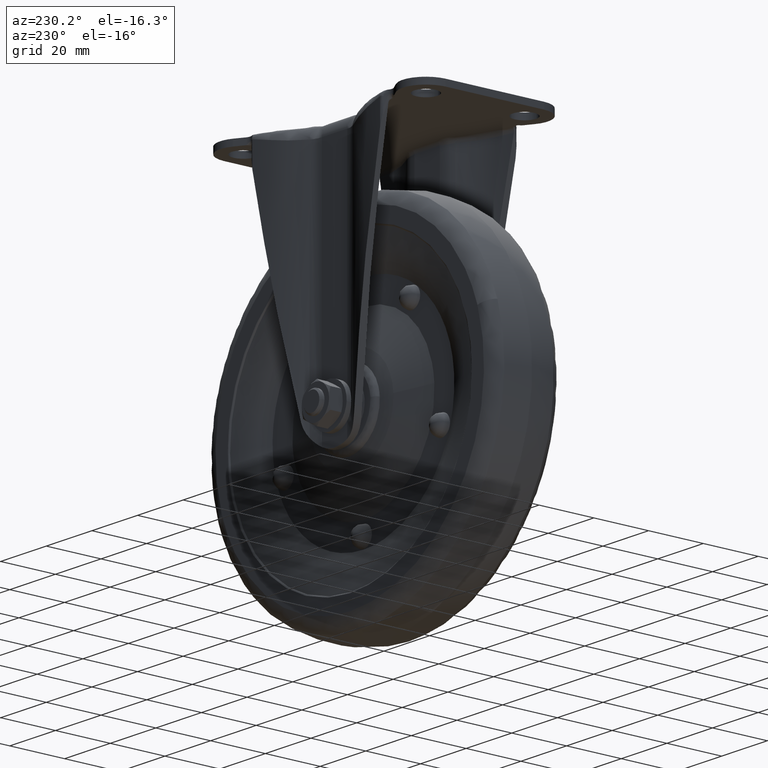
[diagram: clean part render]
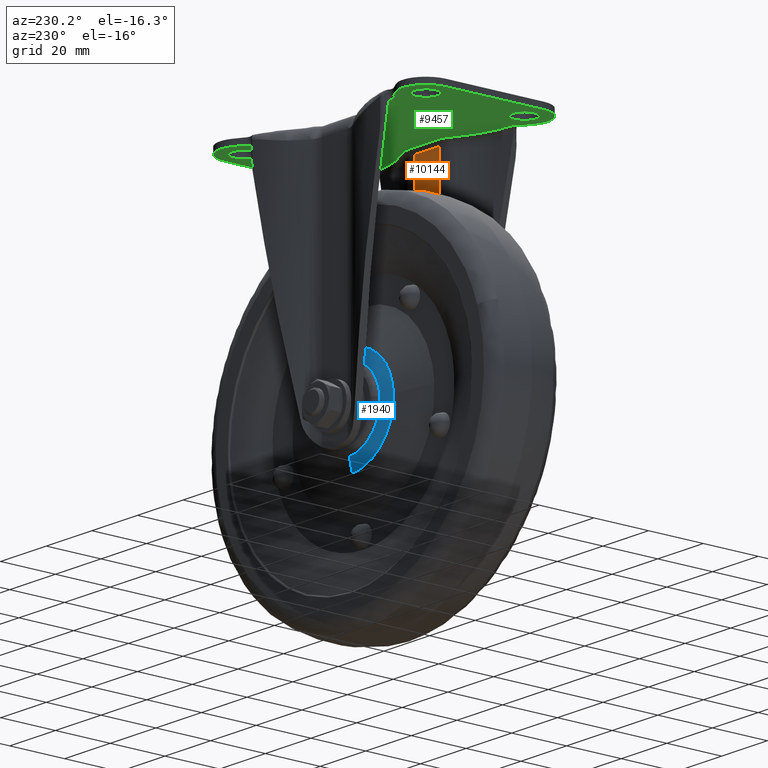
[diagram: same view with three faces highlighted in distinct colors, each labeled with its STEP entity id]
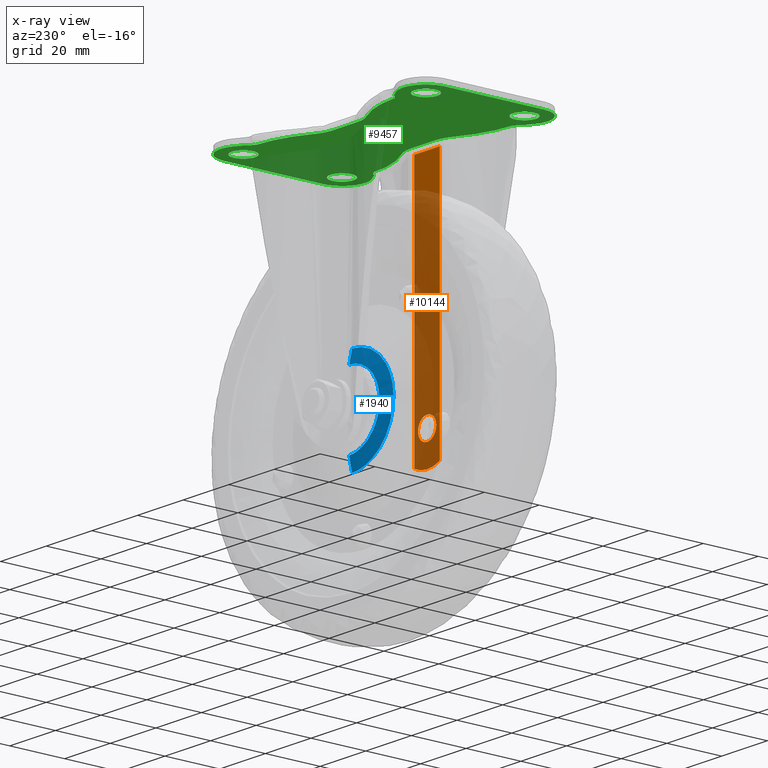
[diagram: x-ray of the same camera — body ghosted, the three highlighted faces saturated]
A machine part, auxiliary view with three faces highlighted in distinct colors.
The next image is the same camera in x-ray (body ghosted, the three faces saturated) — at least one of them is partly hidden behind the body in this view.
Their STEP definitions:

[orange] entity #10144 — the highlighted face is a freeform B-spline surface patch.
#5104=CARTESIAN_POINT('',(0.0,-15.750000000000000,-81.0));
#5105=VERTEX_POINT('',#5104);
#5106=CARTESIAN_POINT('',(-3.999847692249944,-15.750000000000000,-84.965093857234081));
#5107=VERTEX_POINT('',#5106);
#5108=CARTESIAN_POINT('',(0.0,-15.750000000000000,-81.0));
#5109=CARTESIAN_POINT('',(-3.965244841614143,-15.750000000000005,-81.000000000000014));
#5110=CARTESIAN_POINT('',(-3.999847692249944,-15.750000000000000,-84.965093857234081));
#5118=(BOUNDED_CURVE()B_SPLINE_CURVE(2,(#5108,#5109,#5110),.UNSPECIFIED.,.F.,.U.)B_SPLINE_CURVE_WITH_KNOTS((3,3),(0.0,0.248460105630997),.UNSPECIFIED.)CURVE()GEOMETRIC_REPRESENTATION_ITEM()RATIONAL_B_SPLINE_CURVE((1.0,0.708910879660027,0.996414028021684))REPRESENTATION_ITEM(''));
#5119=EDGE_CURVE('',#5105,#5107,#5118,.T.);
#5121=CARTESIAN_POINT('',(3.999847692249944,-15.750000000000000,-85.034906142765919));
#5122=VERTEX_POINT('',#5121);
#5123=CARTESIAN_POINT('',(3.999847692249944,-15.749999999999998,-85.034906142765934));
#5124=CARTESIAN_POINT('',(4.000000000000001,-15.750000000000002,-85.017453403669052));
#5125=CARTESIAN_POINT('',(4.0,-15.750000000000000,-85.0));
#5126=CARTESIAN_POINT('',(4.000000000000000,-15.750000000000009,-81.0));
#5127=CARTESIAN_POINT('',(0.0,-15.750000000000000,-81.0));
#5135=(BOUNDED_CURVE()B_SPLINE_CURVE(2,(#5123,#5124,#5125,#5126,#5127),.UNSPECIFIED.,.F.,.U.)B_SPLINE_CURVE_WITH_KNOTS((3,2,3),(0.748460105630997,0.750000000000000,1.0),.UNSPECIFIED.)CURVE()GEOMETRIC_REPRESENTATION_ITEM()RATIONAL_B_SPLINE_CURVE((0.996414028021683,0.998195901526520,1.0,0.707106781186548,1.0))REPRESENTATION_ITEM(''));
#5136=EDGE_CURVE('',#5122,#5105,#5135,.T.);
#5203=CARTESIAN_POINT('',(0.0,-15.750000000000000,-89.000000000000014));
#5204=VERTEX_POINT('',#5203);
#5205=CARTESIAN_POINT('',(-3.999847692249945,-15.749999999999996,-84.965093857234066));
#5206=CARTESIAN_POINT('',(-4.000000000000000,-15.750000000000000,-84.982546596330963));
#5207=CARTESIAN_POINT('',(-4.0,-15.750000000000000,-85.0));
#5208=CARTESIAN_POINT('',(-4.000000000000000,-15.750000000000009,-89.000000000000014));
#5209=CARTESIAN_POINT('',(0.0,-15.750000000000000,-89.000000000000014));
#5217=(BOUNDED_CURVE()B_SPLINE_CURVE(2,(#5205,#5206,#5207,#5208,#5209),.UNSPECIFIED.,.F.,.U.)B_SPLINE_CURVE_WITH_KNOTS((3,2,3),(0.248460105630997,0.250000000000000,0.500000000000000),.UNSPECIFIED.)CURVE()GEOMETRIC_REPRESENTATION_ITEM()RATIONAL_B_SPLINE_CURVE((0.996414028021685,0.998195901526521,1.0,0.707106781186548,1.0))REPRESENTATION_ITEM(''));
#5218=EDGE_CURVE('',#5107,#5204,#5217,.T.);
#5252=CARTESIAN_POINT('',(0.0,-15.750000000000000,-89.000000000000014));
#5253=CARTESIAN_POINT('',(3.965244841614141,-15.750000000000004,-89.000000000000014));
#5254=CARTESIAN_POINT('',(3.999847692249944,-15.750000000000004,-85.034906142765919));
#5262=(BOUNDED_CURVE()B_SPLINE_CURVE(2,(#5252,#5253,#5254),.UNSPECIFIED.,.F.,.U.)B_SPLINE_CURVE_WITH_KNOTS((3,3),(0.500000000000000,0.748460105630997),.UNSPECIFIED.)CURVE()GEOMETRIC_REPRESENTATION_ITEM()RATIONAL_B_SPLINE_CURVE((1.0,0.708910879660027,0.996414028021684))REPRESENTATION_ITEM(''));
#5263=EDGE_CURVE('',#5204,#5122,#5262,.T.);
#9997=CARTESIAN_POINT('',(5.520442000000000,-15.750000000000000,-95.654796305073091));
#9998=VERTEX_POINT('',#9997);
#9999=CARTESIAN_POINT('',(5.520442000000000,-15.750000000000000,-3.800000000000000));
#10000=VERTEX_POINT('',#9999);
#10001=CARTESIAN_POINT('',(5.520442000000000,-15.750000000000000,-95.654796305073091));
#10002=CARTESIAN_POINT('',(5.520442000000000,-15.750000000000000,-3.800000000000000));
#10003=QUASI_UNIFORM_CURVE('',1,(#10001,#10002),.UNSPECIFIED.,.F.,.U.);
#10004=EDGE_CURVE('',#9998,#10000,#10003,.T.);
#10063=CARTESIAN_POINT('',(-5.520441999999920,-15.750000000000000,-3.800000000000000));
#10064=VERTEX_POINT('',#10063);
#10078=CARTESIAN_POINT('',(-5.520441999999920,-15.750000000000000,-95.654796305073091));
#10079=VERTEX_POINT('',#10078);
#10080=CARTESIAN_POINT('',(-5.520441999999920,-15.750000000000000,-95.654796305073091));
#10081=CARTESIAN_POINT('',(-5.520441999999920,-15.750000000000000,-3.800000000000000));
#10082=QUASI_UNIFORM_CURVE('',1,(#10080,#10081),.UNSPECIFIED.,.F.,.U.);
#10083=EDGE_CURVE('',#10079,#10064,#10082,.T.);
#10111=CARTESIAN_POINT('',(-6.071934134400541,-15.750000000000000,-101.655338054364290));
#10112=CARTESIAN_POINT('',(-6.071934134400541,-15.750000000000000,0.855342235211692));
#10113=CARTESIAN_POINT('',(6.071934430540207,-15.750000000000000,-101.655338054364290));
#10114=CARTESIAN_POINT('',(6.071934430540207,-15.750000000000000,0.855342235211692));
#10115=B_SPLINE_SURFACE_WITH_KNOTS('',1,1,((#10111,#10113),(#10112,#10114)),.UNSPECIFIED.,.F.,.F.,.U.,(2,2),(2,2),(0.0,102.510680289576000),(0.0,12.143868564940750),.UNSPECIFIED.);
#10116=ORIENTED_EDGE('',*,*,#10083,.T.);
#10117=CARTESIAN_POINT('',(-5.520441999999920,-15.750000000000000,-3.800000000000000));
#10118=CARTESIAN_POINT('',(5.520442000000000,-15.750000000000000,-3.800000000000000));
#10119=QUASI_UNIFORM_CURVE('',1,(#10117,#10118),.UNSPECIFIED.,.F.,.U.);
#10120=EDGE_CURVE('',#10064,#10000,#10119,.T.);
#10121=ORIENTED_EDGE('',*,*,#10120,.T.);
#10122=ORIENTED_EDGE('',*,*,#10004,.F.);
#10123=CARTESIAN_POINT('',(5.520442000000007,-15.750000000000000,-95.654796305073106));
#10124=CARTESIAN_POINT('',(4.185146E-014,-15.749999999999998,-98.515036350460718));
#10125=CARTESIAN_POINT('',(-5.520441999999899,-15.750000000000000,-95.654796305073063));
#10133=(BOUNDED_CURVE()B_SPLINE_CURVE(2,(#10123,#10124,#10125),.UNSPECIFIED.,.F.,.U.)CURVE()GEOMETRIC_REPRESENTATION_ITEM()QUASI_UNIFORM_CURVE()RATIONAL_B_SPLINE_CURVE((1.0,0.887899832175140,1.0))REPRESENTATION_ITEM(''));
#10134=EDGE_CURVE('',#9998,#10079,#10133,.T.);
#10135=ORIENTED_EDGE('',*,*,#10134,.T.);
#10136=EDGE_LOOP('',(#10116,#10121,#10122,#10135));
#10137=FACE_OUTER_BOUND('',#10136,.T.);
#10138=ORIENTED_EDGE('',*,*,#5263,.T.);
#10139=ORIENTED_EDGE('',*,*,#5136,.T.);
#10140=ORIENTED_EDGE('',*,*,#5119,.T.);
#10141=ORIENTED_EDGE('',*,*,#5218,.T.);
#10142=EDGE_LOOP('',(#10138,#10139,#10140,#10141));
#10143=FACE_BOUND('',#10142,.T.);
#10144=ADVANCED_FACE('',(#10137,#10143),#10115,.T.);

[blue] entity #1940 — the highlighted face is a freeform B-spline surface patch.
#1618=CARTESIAN_POINT('',(-10.366413089577771,12.688049192069199,-93.245817298732106));
#1619=VERTEX_POINT('',#1618);
#1625=CARTESIAN_POINT('',(0.0,12.688049899293070,-71.754022663813203));
#1626=VERTEX_POINT('',#1625);
#1627=CARTESIAN_POINT('',(0.0,12.688049899293070,-71.754022663813203));
#1628=CARTESIAN_POINT('',(-13.245983458790050,12.688049728728517,-71.754022717224885));
#1629=CARTESIAN_POINT('',(-13.245983598001409,12.688049375117769,-85.000000164084739));
#1630=CARTESIAN_POINT('',(-13.245983646616208,12.688049251631316,-89.625704223587263));
#1631=CARTESIAN_POINT('',(-10.366413089577767,12.688049192069199,-93.245817298732106));
#1639=(BOUNDED_CURVE()B_SPLINE_CURVE(2,(#1627,#1628,#1629,#1630,#1631),.UNSPECIFIED.,.F.,.U.)B_SPLINE_CURVE_WITH_KNOTS((3,2,3),(0.500000000000000,0.750000000000000,0.857863911108724),.UNSPECIFIED.)CURVE()GEOMETRIC_REPRESENTATION_ITEM()RATIONAL_B_SPLINE_CURVE((1.0,0.707106781186548,1.0,0.873629567526231,0.856305607813435))REPRESENTATION_ITEM(''));
#1640=EDGE_CURVE('',#1626,#1619,#1639,.T.);
#1689=CARTESIAN_POINT('',(0.0,12.688049899304950,-98.245977336065266));
#1690=VERTEX_POINT('',#1689);
#1706=CARTESIAN_POINT('',(-10.366413089577767,12.688049192069199,-93.245817298732106));
#1707=CARTESIAN_POINT('',(-6.389102254739951,12.688049545688139,-98.245977446799131));
#1708=CARTESIAN_POINT('',(0.0,12.688049899304950,-98.245977336065266));
#1716=(BOUNDED_CURVE()B_SPLINE_CURVE(2,(#1706,#1707,#1708),.UNSPECIFIED.,.F.,.U.)B_SPLINE_CURVE_WITH_KNOTS((3,3),(0.857863911108724,1.0),.UNSPECIFIED.)CURVE()GEOMETRIC_REPRESENTATION_ITEM()RATIONAL_B_SPLINE_CURVE((0.856305607813435,0.833477213660316,1.0))REPRESENTATION_ITEM(''));
#1717=EDGE_CURVE('',#1619,#1690,#1716,.T.);
#1847=CARTESIAN_POINT('',(0.514801641386205,11.588509420839397,-66.585775598698447));
#1848=CARTESIAN_POINT('',(0.440911184380070,12.469682799776651,-69.228804188820874));
#1849=CARTESIAN_POINT('',(0.363315508502889,12.711175742875819,-72.004366800326082));
#1850=CARTESIAN_POINT('',(0.258899858630133,11.588509420839401,-66.585775598698433));
#1851=CARTESIAN_POINT('',(0.221739470365845,12.469682799776649,-69.228804188820860));
#1852=CARTESIAN_POINT('',(0.182715683532499,12.711175742875808,-72.004366800326082));
#1853=CARTESIAN_POINT('',(-18.414224401301581,11.588509420839394,-66.585775598698419));
#1854=CARTESIAN_POINT('',(-15.771195811179133,12.469682799776646,-69.228804188820860));
#1855=CARTESIAN_POINT('',(-12.995633199673927,12.711175742875810,-72.004366800326068));
#1856=CARTESIAN_POINT('',(-18.414224401301581,11.588509420839394,-85.0));
#1857=CARTESIAN_POINT('',(-15.771195811179133,12.469682799776649,-85.0));
#1858=CARTESIAN_POINT('',(-12.995633199673929,12.711175742875808,-85.000000000000014));
#1859=CARTESIAN_POINT('',(-18.414224401301581,11.588509420839394,-103.414224401301600));
#1860=CARTESIAN_POINT('',(-15.771195811179135,12.469682799776646,-100.771195811179140));
#1861=CARTESIAN_POINT('',(-12.995633199673930,12.711175742875810,-97.995633199673946));
#1862=CARTESIAN_POINT('',(0.258899858630130,11.588509420839388,-103.414224401301570));
#1863=CARTESIAN_POINT('',(0.221739470365842,12.469682799776651,-100.771195811179150));
#1864=CARTESIAN_POINT('',(0.182715683532497,12.711175742875808,-97.995633199673932));
#1865=CARTESIAN_POINT('',(0.514801641386200,11.588509420839397,-103.414224401301580));
#1866=CARTESIAN_POINT('',(0.440911184380065,12.469682799776653,-100.771195811179140));
#1867=CARTESIAN_POINT('',(0.363315508502886,12.711175742875808,-97.995633199673932));
#1875=(BOUNDED_SURFACE()B_SPLINE_SURFACE(2,2,((#1847,#1850,#1853,#1856,#1859,#1862,#1865),(#1848,#1851,#1854,#1857,#1860,#1863,#1866),(#1849,#1852,#1855,#1858,#1861,#1864,#1867)),.UNSPECIFIED.,.F.,.F.,.U.)B_SPLINE_SURFACE_WITH_KNOTS((3,3),(3,1,2,1,3),(0.0,5.552817366161546),(0.0,0.610193719008058,31.119879669410871,61.629565619813683,62.239759338821727),.UNSPECIFIED.)GEOMETRIC_REPRESENTATION_ITEM()RATIONAL_B_SPLINE_SURFACE(((0.901019487364567,0.895802557541933,0.629739136587594,0.890585627719299,0.629739136587594,0.895802557541933,0.901019487364567),(0.894681835065612,0.889501600439638,0.625309634514992,0.884321365813665,0.625309634514992,0.889501600439638,0.894681835065612),(0.900769780755474,0.895554296741587,0.629564612033336,0.890338812727699,0.629564612033336,0.895554296741587,0.900769780755474)))REPRESENTATION_ITEM('')SURFACE());
#1876=CARTESIAN_POINT('',(0.0,11.666732943407069,-66.824634206523427));
#1877=VERTEX_POINT('',#1876);
#1878=CARTESIAN_POINT('',(0.0,11.666732943407073,-66.824634206523427));
#1879=CARTESIAN_POINT('',(0.0,12.441769458409226,-69.234552112638340));
#1880=CARTESIAN_POINT('',(0.0,12.688049899293071,-71.754022663813203));
#1888=(BOUNDED_CURVE()B_SPLINE_CURVE(2,(#1878,#1879,#1880),.UNSPECIFIED.,.F.,.U.)B_SPLINE_CURVE_WITH_KNOTS((3,3),(0.807759080456344,0.857801439566471),.UNSPECIFIED.)CURVE()GEOMETRIC_REPRESENTATION_ITEM()RATIONAL_B_SPLINE_CURVE((0.890042001759547,0.884853785663195,0.889817599199278))REPRESENTATION_ITEM(''));
#1889=EDGE_CURVE('',#1877,#1626,#1888,.T.);
#1890=ORIENTED_EDGE('',*,*,#1889,.T.);
#1891=ORIENTED_EDGE('',*,*,#1640,.T.);
#1892=ORIENTED_EDGE('',*,*,#1717,.T.);
#1893=CARTESIAN_POINT('',(0.0,11.666734379930780,-103.175361326713900));
#1894=VERTEX_POINT('',#1893);
#1895=CARTESIAN_POINT('',(0.0,11.666734379930780,-103.175361326713930));
#1896=CARTESIAN_POINT('',(0.0,12.441769689293849,-100.765445525528720));
#1897=CARTESIAN_POINT('',(0.0,12.688049899304946,-98.245977336065266));
#1905=(BOUNDED_CURVE()B_SPLINE_CURVE(2,(#1895,#1896,#1897),.UNSPECIFIED.,.F.,.U.)B_SPLINE_CURVE_WITH_KNOTS((3,3),(0.807759127104812,0.857801439567684),.UNSPECIFIED.)CURVE()GEOMETRIC_REPRESENTATION_ITEM()RATIONAL_B_SPLINE_CURVE((0.890041992086857,0.884853790290235,0.889817599199519))REPRESENTATION_ITEM(''));
#1906=EDGE_CURVE('',#1894,#1690,#1905,.T.);
#1907=ORIENTED_EDGE('',*,*,#1906,.F.);
#1908=CARTESIAN_POINT('',(-18.141456629342009,11.666734590494920,-83.890420978409807));
#1909=VERTEX_POINT('',#1908);
#1910=CARTESIAN_POINT('',(-18.141456629342017,11.666734590494913,-83.890420978409807));
#1911=CARTESIAN_POINT('',(-18.175357168187357,11.666734598420932,-84.444691486637893));
#1912=CARTESIAN_POINT('',(-18.175357163415558,11.666734605506850,-84.999997748080006));
#1913=CARTESIAN_POINT('',(-18.175357007233018,11.666734837431170,-103.175361317727820));
#1914=CARTESIAN_POINT('',(0.0,11.666734379930780,-103.175361326713900));
#1922=(BOUNDED_CURVE()B_SPLINE_CURVE(2,(#1910,#1911,#1912,#1913,#1914),.UNSPECIFIED.,.F.,.U.)B_SPLINE_CURVE_WITH_KNOTS((3,2,3),(0.739332987273075,0.750000000000000,1.0),.UNSPECIFIED.)CURVE()GEOMETRIC_REPRESENTATION_ITEM()RATIONAL_B_SPLINE_CURVE((0.976072095319635,0.987502817229148,1.0,0.707106781186547,1.0))REPRESENTATION_ITEM(''));
#1923=EDGE_CURVE('',#1909,#1894,#1922,.T.);
#1924=ORIENTED_EDGE('',*,*,#1923,.F.);
#1925=CARTESIAN_POINT('',(0.0,11.666732943407069,-66.824634206523427));
#1926=CARTESIAN_POINT('',(-17.097671107821739,11.666733429744262,-66.824634196970891));
#1927=CARTESIAN_POINT('',(-18.141456629342017,11.666734590494913,-83.890420978409807));
#1935=(BOUNDED_CURVE()B_SPLINE_CURVE(2,(#1925,#1926,#1927),.UNSPECIFIED.,.F.,.U.)B_SPLINE_CURVE_WITH_KNOTS((3,3),(0.500000000000000,0.739332987273075),.UNSPECIFIED.)CURVE()GEOMETRIC_REPRESENTATION_ITEM()RATIONAL_B_SPLINE_CURVE((1.0,0.719603963957400,0.976072095319635))REPRESENTATION_ITEM(''));
#1936=EDGE_CURVE('',#1877,#1909,#1935,.T.);
#1937=ORIENTED_EDGE('',*,*,#1936,.F.);
#1938=EDGE_LOOP('',(#1890,#1891,#1892,#1907,#1924,#1937));
#1939=FACE_OUTER_BOUND('',#1938,.T.);
#1940=ADVANCED_FACE('',(#1939),#1875,.T.);

[green] entity #9457 — the highlighted face is a freeform B-spline surface patch.
#5468=CARTESIAN_POINT('',(-40.259456293401172,13.757927106730190,-2.300000000000080));
#5469=VERTEX_POINT('',#5468);
#5470=CARTESIAN_POINT('',(-35.750000000000007,18.0,-2.300000000000080));
#5471=VERTEX_POINT('',#5470);
#5472=CARTESIAN_POINT('',(-40.259456293401172,13.757927106730186,-2.300000000000079));
#5473=CARTESIAN_POINT('',(-40.129849244208550,13.750000000000002,-2.300000000000079));
#5474=CARTESIAN_POINT('',(-40.0,13.750000000000000,-2.300000000000080));
#5475=CARTESIAN_POINT('',(-35.750000000000007,13.750000000000000,-2.300000000000080));
#5476=CARTESIAN_POINT('',(-35.750000000000007,18.0,-2.300000000000080));
#5484=(BOUNDED_CURVE()B_SPLINE_CURVE(2,(#5472,#5473,#5474,#5475,#5476),.UNSPECIFIED.,.F.,.U.)B_SPLINE_CURVE_WITH_KNOTS((3,2,3),(0.239332962226592,0.250000000000000,0.500000000000000),.UNSPECIFIED.)CURVE()GEOMETRIC_REPRESENTATION_ITEM()RATIONAL_B_SPLINE_CURVE((0.976072041640247,0.987502787885367,1.0,0.707106781186548,1.0))REPRESENTATION_ITEM(''));
#5485=EDGE_CURVE('',#5469,#5471,#5484,.T.);
#5526=CARTESIAN_POINT('',(-39.740543706598842,22.242072893269810,-2.300000000000080));
#5527=VERTEX_POINT('',#5526);
#5533=CARTESIAN_POINT('',(-35.750000000000007,18.0,-2.300000000000080));
#5534=CARTESIAN_POINT('',(-35.750000000000000,21.998000783992268,-2.300000000000080));
#5535=CARTESIAN_POINT('',(-39.740543706598835,22.242072893269821,-2.300000000000081));
#5543=(BOUNDED_CURVE()B_SPLINE_CURVE(2,(#5533,#5534,#5535),.UNSPECIFIED.,.F.,.U.)B_SPLINE_CURVE_WITH_KNOTS((3,3),(0.500000000000000,0.739332962226592),.UNSPECIFIED.)CURVE()GEOMETRIC_REPRESENTATION_ITEM()RATIONAL_B_SPLINE_CURVE((1.0,0.719603993301180,0.976072041640248))REPRESENTATION_ITEM(''));
#5544=EDGE_CURVE('',#5471,#5527,#5543,.T.);
#5567=CARTESIAN_POINT('',(-44.250000000000000,18.0,-2.300000000000080));
#5568=VERTEX_POINT('',#5567);
#5569=CARTESIAN_POINT('',(-44.250000000000000,18.0,-2.300000000000080));
#5570=CARTESIAN_POINT('',(-44.249999999999993,14.001999216007743,-2.300000000000079));
#5571=CARTESIAN_POINT('',(-40.259456293401172,13.757927106730188,-2.300000000000080));
#5579=(BOUNDED_CURVE()B_SPLINE_CURVE(2,(#5569,#5570,#5571),.UNSPECIFIED.,.F.,.U.)B_SPLINE_CURVE_WITH_KNOTS((3,3),(0.0,0.239332962226592),.UNSPECIFIED.)CURVE()GEOMETRIC_REPRESENTATION_ITEM()RATIONAL_B_SPLINE_CURVE((1.0,0.719603993301180,0.976072041640247))REPRESENTATION_ITEM(''));
#5580=EDGE_CURVE('',#5568,#5469,#5579,.T.);
#5582=CARTESIAN_POINT('',(-39.740543706598835,22.242072893269821,-2.300000000000081));
#5583=CARTESIAN_POINT('',(-39.870150755791464,22.249999999999996,-2.300000000000080));
#5584=CARTESIAN_POINT('',(-40.0,22.250000000000000,-2.300000000000080));
#5585=CARTESIAN_POINT('',(-44.250000000000000,22.249999999999996,-2.300000000000080));
#5586=CARTESIAN_POINT('',(-44.250000000000000,18.0,-2.300000000000080));
#5594=(BOUNDED_CURVE()B_SPLINE_CURVE(2,(#5582,#5583,#5584,#5585,#5586),.UNSPECIFIED.,.F.,.U.)B_SPLINE_CURVE_WITH_KNOTS((3,2,3),(0.739332962226592,0.750000000000000,1.0),.UNSPECIFIED.)CURVE()GEOMETRIC_REPRESENTATION_ITEM()RATIONAL_B_SPLINE_CURVE((0.976072041640248,0.987502787885368,1.0,0.707106781186548,1.0))REPRESENTATION_ITEM(''));
#5595=EDGE_CURVE('',#5527,#5568,#5594,.T.);
#5650=CARTESIAN_POINT('',(-40.259456293401172,-22.242072893269810,-2.300000000000080));
#5651=VERTEX_POINT('',#5650);
#5652=CARTESIAN_POINT('',(-35.750000000000007,-18.0,-2.300000000000080));
#5653=VERTEX_POINT('',#5652);
#5654=CARTESIAN_POINT('',(-40.259456293401165,-22.242072893269818,-2.300000000000079));
#5655=CARTESIAN_POINT('',(-40.129849244208543,-22.250000000000000,-2.300000000000079));
#5656=CARTESIAN_POINT('',(-40.0,-22.250000000000000,-2.300000000000080));
#5657=CARTESIAN_POINT('',(-35.750000000000007,-22.249999999999996,-2.300000000000080));
#5658=CARTESIAN_POINT('',(-35.750000000000007,-18.0,-2.300000000000080));
#5666=(BOUNDED_CURVE()B_SPLINE_CURVE(2,(#5654,#5655,#5656,#5657,#5658),.UNSPECIFIED.,.F.,.U.)B_SPLINE_CURVE_WITH_KNOTS((3,2,3),(0.239332962226592,0.250000000000000,0.500000000000000),.UNSPECIFIED.)CURVE()GEOMETRIC_REPRESENTATION_ITEM()RATIONAL_B_SPLINE_CURVE((0.976072041640247,0.987502787885367,1.0,0.707106781186548,1.0))REPRESENTATION_ITEM(''));
#5667=EDGE_CURVE('',#5651,#5653,#5666,.T.);
#5708=CARTESIAN_POINT('',(-39.740543706598842,-13.757927106730190,-2.300000000000080));
#5709=VERTEX_POINT('',#5708);
#5715=CARTESIAN_POINT('',(-35.750000000000007,-18.0,-2.300000000000080));
#5716=CARTESIAN_POINT('',(-35.750000000000000,-14.001999216007727,-2.300000000000080));
#5717=CARTESIAN_POINT('',(-39.740543706598835,-13.757927106730184,-2.300000000000081));
#5725=(BOUNDED_CURVE()B_SPLINE_CURVE(2,(#5715,#5716,#5717),.UNSPECIFIED.,.F.,.U.)B_SPLINE_CURVE_WITH_KNOTS((3,3),(0.500000000000000,0.739332962226592),.UNSPECIFIED.)CURVE()GEOMETRIC_REPRESENTATION_ITEM()RATIONAL_B_SPLINE_CURVE((1.0,0.719603993301180,0.976072041640248))REPRESENTATION_ITEM(''));
#5726=EDGE_CURVE('',#5653,#5709,#5725,.T.);
#5749=CARTESIAN_POINT('',(-44.250000000000000,-18.0,-2.300000000000080));
#5750=VERTEX_POINT('',#5749);
#5751=CARTESIAN_POINT('',(-44.250000000000000,-18.0,-2.300000000000080));
#5752=CARTESIAN_POINT('',(-44.249999999999993,-21.998000783992250,-2.300000000000079));
#5753=CARTESIAN_POINT('',(-40.259456293401172,-22.242072893269814,-2.300000000000080));
#5761=(BOUNDED_CURVE()B_SPLINE_CURVE(2,(#5751,#5752,#5753),.UNSPECIFIED.,.F.,.U.)B_SPLINE_CURVE_WITH_KNOTS((3,3),(0.0,0.239332962226592),.UNSPECIFIED.)CURVE()GEOMETRIC_REPRESENTATION_ITEM()RATIONAL_B_SPLINE_CURVE((1.0,0.719603993301180,0.976072041640247))REPRESENTATION_ITEM(''));
#5762=EDGE_CURVE('',#5750,#5651,#5761,.T.);
#5764=CARTESIAN_POINT('',(-39.740543706598835,-13.757927106730184,-2.300000000000081));
#5765=CARTESIAN_POINT('',(-39.870150755791464,-13.749999999999995,-2.300000000000080));
#5766=CARTESIAN_POINT('',(-40.0,-13.750000000000000,-2.300000000000080));
#5767=CARTESIAN_POINT('',(-44.250000000000000,-13.750000000000000,-2.300000000000080));
#5768=CARTESIAN_POINT('',(-44.250000000000000,-18.0,-2.300000000000080));
#5776=(BOUNDED_CURVE()B_SPLINE_CURVE(2,(#5764,#5765,#5766,#5767,#5768),.UNSPECIFIED.,.F.,.U.)B_SPLINE_CURVE_WITH_KNOTS((3,2,3),(0.739332962226592,0.750000000000000,1.0),.UNSPECIFIED.)CURVE()GEOMETRIC_REPRESENTATION_ITEM()RATIONAL_B_SPLINE_CURVE((0.976072041640248,0.987502787885368,1.0,0.707106781186548,1.0))REPRESENTATION_ITEM(''));
#5777=EDGE_CURVE('',#5709,#5750,#5776,.T.);
#5832=CARTESIAN_POINT('',(39.740543706598842,13.757927106730190,-2.300000000000080));
#5833=VERTEX_POINT('',#5832);
#5834=CARTESIAN_POINT('',(44.250000000000000,18.0,-2.300000000000080));
#5835=VERTEX_POINT('',#5834);
#5836=CARTESIAN_POINT('',(39.740543706598842,13.757927106730186,-2.300000000000080));
#5837=CARTESIAN_POINT('',(39.870150755791457,13.749999999999996,-2.300000000000079));
#5838=CARTESIAN_POINT('',(40.0,13.750000000000000,-2.300000000000080));
#5839=CARTESIAN_POINT('',(44.250000000000000,13.750000000000000,-2.300000000000080));
#5840=CARTESIAN_POINT('',(44.250000000000000,18.0,-2.300000000000080));
#5848=(BOUNDED_CURVE()B_SPLINE_CURVE(2,(#5836,#5837,#5838,#5839,#5840),.UNSPECIFIED.,.F.,.U.)B_SPLINE_CURVE_WITH_KNOTS((3,2,3),(0.239332962226592,0.250000000000000,0.500000000000000),.UNSPECIFIED.)CURVE()GEOMETRIC_REPRESENTATION_ITEM()RATIONAL_B_SPLINE_CURVE((0.976072041640248,0.987502787885368,1.0,0.707106781186548,1.0))REPRESENTATION_ITEM(''));
#5849=EDGE_CURVE('',#5833,#5835,#5848,.T.);
#5890=CARTESIAN_POINT('',(40.259456293401172,22.242072893269810,-2.300000000000080));
#5891=VERTEX_POINT('',#5890);
#5897=CARTESIAN_POINT('',(44.250000000000000,18.0,-2.300000000000080));
#5898=CARTESIAN_POINT('',(44.249999999999993,21.998000783992257,-2.300000000000080));
#5899=CARTESIAN_POINT('',(40.259456293401165,22.242072893269814,-2.300000000000080));
#5907=(BOUNDED_CURVE()B_SPLINE_CURVE(2,(#5897,#5898,#5899),.UNSPECIFIED.,.F.,.U.)B_SPLINE_CURVE_WITH_KNOTS((3,3),(0.500000000000000,0.739332962226592),.UNSPECIFIED.)CURVE()GEOMETRIC_REPRESENTATION_ITEM()RATIONAL_B_SPLINE_CURVE((1.0,0.719603993301180,0.976072041640247))REPRESENTATION_ITEM(''));
#5908=EDGE_CURVE('',#5835,#5891,#5907,.T.);
#5931=CARTESIAN_POINT('',(35.750000000000007,18.0,-2.300000000000080));
#5932=VERTEX_POINT('',#5931);
#5933=CARTESIAN_POINT('',(35.750000000000007,18.0,-2.300000000000080));
#5934=CARTESIAN_POINT('',(35.750000000000007,14.001999216007739,-2.300000000000079));
#5935=CARTESIAN_POINT('',(39.740543706598828,13.757927106730186,-2.300000000000080));
#5943=(BOUNDED_CURVE()B_SPLINE_CURVE(2,(#5933,#5934,#5935),.UNSPECIFIED.,.F.,.U.)B_SPLINE_CURVE_WITH_KNOTS((3,3),(0.0,0.239332962226592),.UNSPECIFIED.)CURVE()GEOMETRIC_REPRESENTATION_ITEM()RATIONAL_B_SPLINE_CURVE((1.0,0.719603993301180,0.976072041640248))REPRESENTATION_ITEM(''));
#5944=EDGE_CURVE('',#5932,#5833,#5943,.T.);
#5946=CARTESIAN_POINT('',(40.259456293401165,22.242072893269814,-2.300000000000080));
#5947=CARTESIAN_POINT('',(40.129849244208543,22.250000000000004,-2.300000000000080));
#5948=CARTESIAN_POINT('',(40.0,22.250000000000000,-2.300000000000080));
#5949=CARTESIAN_POINT('',(35.750000000000007,22.249999999999996,-2.300000000000080));
#5950=CARTESIAN_POINT('',(35.750000000000007,18.0,-2.300000000000080));
#5958=(BOUNDED_CURVE()B_SPLINE_CURVE(2,(#5946,#5947,#5948,#5949,#5950),.UNSPECIFIED.,.F.,.U.)B_SPLINE_CURVE_WITH_KNOTS((3,2,3),(0.739332962226592,0.750000000000000,1.0),.UNSPECIFIED.)CURVE()GEOMETRIC_REPRESENTATION_ITEM()RATIONAL_B_SPLINE_CURVE((0.976072041640247,0.987502787885367,1.0,0.707106781186548,1.0))REPRESENTATION_ITEM(''));
#5959=EDGE_CURVE('',#5891,#5932,#5958,.T.);
#6014=CARTESIAN_POINT('',(39.740543706598842,-22.242072893269810,-2.300000000000080));
#6015=VERTEX_POINT('',#6014);
#6016=CARTESIAN_POINT('',(44.250000000000000,-18.0,-2.300000000000080));
#6017=VERTEX_POINT('',#6016);
#6018=CARTESIAN_POINT('',(39.740543706598828,-22.242072893269814,-2.300000000000080));
#6019=CARTESIAN_POINT('',(39.870150755791443,-22.250000000000004,-2.300000000000080));
#6020=CARTESIAN_POINT('',(40.0,-22.250000000000000,-2.300000000000080));
#6021=CARTESIAN_POINT('',(44.250000000000000,-22.249999999999996,-2.300000000000080));
#6022=CARTESIAN_POINT('',(44.250000000000000,-18.0,-2.300000000000080));
#6030=(BOUNDED_CURVE()B_SPLINE_CURVE(2,(#6018,#6019,#6020,#6021,#6022),.UNSPECIFIED.,.F.,.U.)B_SPLINE_CURVE_WITH_KNOTS((3,2,3),(0.239332962226592,0.250000000000000,0.500000000000000),.UNSPECIFIED.)CURVE()GEOMETRIC_REPRESENTATION_ITEM()RATIONAL_B_SPLINE_CURVE((0.976072041640247,0.987502787885367,1.0,0.707106781186548,1.0))REPRESENTATION_ITEM(''));
#6031=EDGE_CURVE('',#6015,#6017,#6030,.T.);
#6072=CARTESIAN_POINT('',(40.259456293401172,-13.757927106730190,-2.300000000000080));
#6073=VERTEX_POINT('',#6072);
#6079=CARTESIAN_POINT('',(44.250000000000000,-18.0,-2.300000000000080));
#6080=CARTESIAN_POINT('',(44.249999999999993,-14.001999216007748,-2.300000000000080));
#6081=CARTESIAN_POINT('',(40.259456293401165,-13.757927106730182,-2.300000000000080));
#6089=(BOUNDED_CURVE()B_SPLINE_CURVE(2,(#6079,#6080,#6081),.UNSPECIFIED.,.F.,.U.)B_SPLINE_CURVE_WITH_KNOTS((3,3),(0.500000000000000,0.739332962226592),.UNSPECIFIED.)CURVE()GEOMETRIC_REPRESENTATION_ITEM()RATIONAL_B_SPLINE_CURVE((1.0,0.719603993301180,0.976072041640247))REPRESENTATION_ITEM(''));
#6090=EDGE_CURVE('',#6017,#6073,#6089,.T.);
#6113=CARTESIAN_POINT('',(35.750000000000007,-18.0,-2.300000000000080));
#6114=VERTEX_POINT('',#6113);
#6115=CARTESIAN_POINT('',(35.750000000000007,-18.0,-2.300000000000080));
#6116=CARTESIAN_POINT('',(35.750000000000007,-21.998000783992264,-2.300000000000079));
#6117=CARTESIAN_POINT('',(39.740543706598828,-22.242072893269814,-2.300000000000080));
#6125=(BOUNDED_CURVE()B_SPLINE_CURVE(2,(#6115,#6116,#6117),.UNSPECIFIED.,.F.,.U.)B_SPLINE_CURVE_WITH_KNOTS((3,3),(0.0,0.239332962226592),.UNSPECIFIED.)CURVE()GEOMETRIC_REPRESENTATION_ITEM()RATIONAL_B_SPLINE_CURVE((1.0,0.719603993301180,0.976072041640248))REPRESENTATION_ITEM(''));
#6126=EDGE_CURVE('',#6114,#6015,#6125,.T.);
#6128=CARTESIAN_POINT('',(40.259456293401165,-13.757927106730182,-2.300000000000080));
#6129=CARTESIAN_POINT('',(40.129849244208543,-13.749999999999998,-2.300000000000080));
#6130=CARTESIAN_POINT('',(40.0,-13.750000000000000,-2.300000000000080));
#6131=CARTESIAN_POINT('',(35.750000000000007,-13.750000000000000,-2.300000000000080));
#6132=CARTESIAN_POINT('',(35.750000000000007,-18.0,-2.300000000000080));
#6140=(BOUNDED_CURVE()B_SPLINE_CURVE(2,(#6128,#6129,#6130,#6131,#6132),.UNSPECIFIED.,.F.,.U.)B_SPLINE_CURVE_WITH_KNOTS((3,2,3),(0.739332962226592,0.750000000000000,1.0),.UNSPECIFIED.)CURVE()GEOMETRIC_REPRESENTATION_ITEM()RATIONAL_B_SPLINE_CURVE((0.976072041640247,0.987502787885367,1.0,0.707106781186548,1.0))REPRESENTATION_ITEM(''));
#6141=EDGE_CURVE('',#6073,#6114,#6140,.T.);
#6955=CARTESIAN_POINT('',(-32.305131926477451,23.342988518921199,-2.300000000000080));
#6956=VERTEX_POINT('',#6955);
#7040=CARTESIAN_POINT('',(-35.702930649976352,-25.333839035668099,-2.300000000000080));
#7041=VERTEX_POINT('',#7040);
#7049=CARTESIAN_POINT('',(-32.305131999999887,-23.342988000000052,-2.300000000000080));
#7050=VERTEX_POINT('',#7049);
#7051=CARTESIAN_POINT('',(-35.702930649976352,-25.333839035668099,-2.300000000000080));
#7052=CARTESIAN_POINT('',(-32.305131999999887,-23.342988000000052,-2.300000000000080));
#7053=QUASI_UNIFORM_CURVE('',1,(#7051,#7052),.UNSPECIFIED.,.F.,.U.);
#7054=EDGE_CURVE('',#7041,#7050,#7053,.T.);
#7085=CARTESIAN_POINT('',(-48.500000000000000,-18.0,-2.300000000000080));
#7086=VERTEX_POINT('',#7085);
#7094=CARTESIAN_POINT('',(-48.500000000000000,-18.0,-2.300000000000080));
#7095=CARTESIAN_POINT('',(-48.500012119351439,-18.465004679879719,-2.300000000000081));
#7096=CARTESIAN_POINT('',(-48.408285606426666,-19.581078305167061,-2.300000000000075));
#7097=CARTESIAN_POINT('',(-47.982895431035509,-21.066034866773251,-2.300000000000089));
#7098=CARTESIAN_POINT('',(-47.183920327940157,-22.647675845518972,-2.300000000000073));
#7099=CARTESIAN_POINT('',(-46.201337024474277,-23.901597376511329,-2.300000000000081));
#7100=CARTESIAN_POINT('',(-45.024444127413084,-24.894478182547999,-2.300000000000083));
#7101=CARTESIAN_POINT('',(-43.755673906070889,-25.678147192276072,-2.300000000000073));
#7102=CARTESIAN_POINT('',(-42.142659384417300,-26.308887591036068,-2.300000000000088));
#7103=CARTESIAN_POINT('',(-40.378269304297163,-26.547893156193279,-2.300000000000086));
#7104=CARTESIAN_POINT('',(-38.609724016134642,-26.437670777497811,-2.300000000000065));
#7105=CARTESIAN_POINT('',(-37.113444606678449,-26.053999232286280,-2.300000000000094));
#7106=CARTESIAN_POINT('',(-36.104125632173819,-25.568922049395528,-2.300000000000071));
#7107=CARTESIAN_POINT('',(-35.702930649976352,-25.333839035668099,-2.300000000000080));
#7108=B_SPLINE_CURVE_WITH_KNOTS('',3,(#7094,#7095,#7096,#7097,#7098,#7099,#7100,#7101,#7102,#7103,#7104,#7105,#7106,#7107),.UNSPECIFIED.,.F.,.U.,(4,1,1,1,1,1,1,1,1,1,1,4),(0.000000093116608,1.395043679923504,3.348185557759010,4.603763475651146,6.696402258153636,8.091507030655626,9.207498426182109,11.160629513936151,13.253247178738510,14.508840336484180,16.461992883399901,17.857010844626782),.UNSPECIFIED.);
#7109=EDGE_CURVE('',#7086,#7041,#7108,.T.);
#7137=CARTESIAN_POINT('',(-48.500000000000000,18.0,-2.300000000000080));
#7138=VERTEX_POINT('',#7137);
#7146=CARTESIAN_POINT('',(-48.500000000000000,18.0,-2.300000000000080));
#7147=CARTESIAN_POINT('',(-48.500000000000000,-18.0,-2.300000000000080));
#7148=QUASI_UNIFORM_CURVE('',1,(#7146,#7147),.UNSPECIFIED.,.F.,.U.);
#7149=EDGE_CURVE('',#7138,#7086,#7148,.T.);
#7174=CARTESIAN_POINT('',(-35.702930649976352,25.333838794912950,-2.300000000000080));
#7175=VERTEX_POINT('',#7174);
#7183=CARTESIAN_POINT('',(-35.702930649976352,25.333838794912950,-2.300000000000080));
#7184=CARTESIAN_POINT('',(-36.184366961102683,25.616002057705831,-2.300000000000076));
#7185=CARTESIAN_POINT('',(-37.203067805174953,26.084985651361698,-2.300000000000094));
#7186=CARTESIAN_POINT('',(-38.702847325469797,26.443425701273569,-2.300000000000066));
#7187=CARTESIAN_POINT('',(-40.099034409738977,26.530385800786650,-2.300000000000093));
#7188=CARTESIAN_POINT('',(-41.492825129513783,26.411018067463750,-2.300000000000056));
#7189=CARTESIAN_POINT('',(-42.983897435918202,26.017913690742610,-2.300000000000097));
#7190=CARTESIAN_POINT('',(-44.579141455713341,25.238021683406469,-2.300000000000070));
#7191=CARTESIAN_POINT('',(-45.828420337189620,24.252062585220141,-2.300000000000078));
#7192=CARTESIAN_POINT('',(-46.906573450772193,23.028076915251319,-2.300000000000091));
#7193=CARTESIAN_POINT('',(-47.688601823336001,21.752119472532680,-2.300000000000064));
#7194=CARTESIAN_POINT('',(-48.334001624084877,19.999468228409100,-2.300000000000096));
#7195=CARTESIAN_POINT('',(-48.500253261454709,18.744063852470688,-2.300000000000069));
#7196=CARTESIAN_POINT('',(-48.500000000000000,18.0,-2.300000000000080));
#7197=B_SPLINE_CURVE_WITH_KNOTS('',3,(#7183,#7184,#7185,#7186,#7187,#7188,#7189,#7190,#7191,#7192,#7193,#7194,#7195,#7196),.UNSPECIFIED.,.F.,.U.,(4,1,1,1,1,1,1,1,1,1,1,4),(0.000000093093341,1.674094013806656,3.348185567194415,4.603763488626321,5.859358675053032,7.533486379869315,9.207498452214210,11.160629545386231,12.276675991658131,14.090298425270730,15.624886823672041,17.857010895009878),.UNSPECIFIED.);
#7198=EDGE_CURVE('',#7175,#7138,#7197,.T.);
#7225=CARTESIAN_POINT('',(-32.305131926477451,23.342988518921199,-2.300000000000080));
#7226=CARTESIAN_POINT('',(-35.702930649976352,25.333838794912950,-2.300000000000080));
#7227=QUASI_UNIFORM_CURVE('',1,(#7225,#7226),.UNSPECIFIED.,.F.,.U.);
#7228=EDGE_CURVE('',#6956,#7175,#7227,.T.);
#7846=CARTESIAN_POINT('',(30.581699753192801,22.030305684444698,-2.300000000000070));
#7847=VERTEX_POINT('',#7846);
#7945=CARTESIAN_POINT('',(32.305131010435097,23.342987982190500,-2.300000000000080));
#7946=VERTEX_POINT('',#7945);
#7962=CARTESIAN_POINT('',(30.581699753192801,22.030305684444698,-2.300000000000070));
#7963=CARTESIAN_POINT('',(30.678801736992959,22.017431528668371,-2.300000000000070));
#7964=CARTESIAN_POINT('',(30.851336652771788,22.013153167728831,-2.300000000000076));
#7965=CARTESIAN_POINT('',(31.081113367153169,22.054935455119590,-2.300000000000065));
#7966=CARTESIAN_POINT('',(31.359357846956879,22.152268010551591,-2.300000000000077));
#7967=CARTESIAN_POINT('',(31.557353571901722,22.279508792648102,-2.300000000000062));
#7968=CARTESIAN_POINT('',(31.810820296946591,22.491554713491571,-2.300000000000085));
#7969=CARTESIAN_POINT('',(31.927074573355281,22.619499048630640,-2.300000000000069));
#7970=CARTESIAN_POINT('',(32.025256182869349,22.760037705120450,-2.300000000000073));
#7971=CARTESIAN_POINT('',(32.038580511739092,22.780589084988911,-2.300000000000070));
#7972=CARTESIAN_POINT('',(32.059632830128592,22.810719957670280,-2.300000000000070));
#7973=CARTESIAN_POINT('',(32.078456422699482,22.842293800982919,-2.300000000000070));
#7974=CARTESIAN_POINT('',(32.104534135891448,22.883752381289121,-2.300000000000067));
#7975=CARTESIAN_POINT('',(32.195298431300003,23.043613084059999,-2.300000000000087));
#7976=CARTESIAN_POINT('',(32.261093285163142,23.202804041888239,-2.300000000000052));
#7977=CARTESIAN_POINT('',(32.305131010435097,23.342987982190500,-2.300000000000080));
#7978=B_SPLINE_CURVE_WITH_KNOTS('',3,(#7962,#7963,#7964,#7965,#7966,#7967,#7968,#7969,#7970,#7971,#7972,#7973,#7974,#7975,#7976,#7977),.UNSPECIFIED.,.F.,.U.,(4,1,1,1,1,1,2,1,1,1,1,1,4),(-0.000032332477292,0.293919807388525,0.514328516020620,0.698002327453515,1.175715689156218,1.212512319706339,1.690098987624626,1.726839067953726,1.763579148282827,1.800328678515169,1.837078208747512,1.910551628225948,2.351463366891930),.UNSPECIFIED.);
#7979=EDGE_CURVE('',#7847,#7946,#7978,.T.);
#8011=CARTESIAN_POINT('',(-30.581699753192598,22.030305684445100,-2.300000000000070));
#8012=VERTEX_POINT('',#8011);
#8013=CARTESIAN_POINT('',(-32.305131926477451,23.342988518921199,-2.300000000000080));
#8014=CARTESIAN_POINT('',(-32.246612279233027,23.156156606960341,-2.300000000000069));
#8015=CARTESIAN_POINT('',(-32.134971118263032,22.907956660941728,-2.300000000000066));
#8016=CARTESIAN_POINT('',(-31.896481950930859,22.580576954332560,-2.300000000000071));
#8017=CARTESIAN_POINT('',(-31.641239195486090,22.331103550564130,-2.300000000000070));
#8018=CARTESIAN_POINT('',(-31.337295509973600,22.141598978151549,-2.300000000000071));
#8019=CARTESIAN_POINT('',(-30.975900496175239,22.020306289402320,-2.300000000000070));
#8020=CARTESIAN_POINT('',(-30.739446712577742,22.008863451047691,-2.300000000000082));
#8021=CARTESIAN_POINT('',(-30.581699753192598,22.030305684445100,-2.300000000000070));
#8022=B_SPLINE_CURVE_WITH_KNOTS('',3,(#8013,#8014,#8015,#8016,#8017,#8018,#8019,#8020,#8021),.UNSPECIFIED.,.F.,.U.,(4,1,1,1,1,1,4),(0.000006147919367,0.587893536171677,0.808318042094941,1.212649789533441,1.653468366890447,1.873842487532701,2.351496114495360),.UNSPECIFIED.);
#8023=EDGE_CURVE('',#6956,#8012,#8022,.T.);
#8394=CARTESIAN_POINT('',(32.305131926477650,-23.342988542845202,-2.300000000000080));
#8395=VERTEX_POINT('',#8394);
#8396=CARTESIAN_POINT('',(30.581699753192801,-22.030305684444748,-2.300000000000070));
#8397=VERTEX_POINT('',#8396);
#8398=CARTESIAN_POINT('',(32.305131926477650,-23.342988542845202,-2.300000000000080));
#8399=CARTESIAN_POINT('',(32.246559892743583,-23.156162419484581,-2.300000000000076));
#8400=CARTESIAN_POINT('',(32.089453607475328,-22.806355237358918,-2.300000000000072));
#8401=CARTESIAN_POINT('',(31.829644204947851,-22.507175756606689,-2.300000000000068));
#8402=CARTESIAN_POINT('',(31.604109591354749,-22.318672679782068,-2.300000000000074));
#8403=CARTESIAN_POINT('',(31.433712074326539,-22.197775679614580,-2.300000000000066));
#8404=CARTESIAN_POINT('',(31.187798786367509,-22.084290124484049,-2.300000000000075));
#8405=CARTESIAN_POINT('',(30.901021652195482,-22.014761314577079,-2.300000000000047));
#8406=CARTESIAN_POINT('',(30.703065245850190,-22.014123695305759,-2.300000000000114));
#8407=CARTESIAN_POINT('',(30.581699753192801,-22.030305684444748,-2.300000000000070));
#8408=B_SPLINE_CURVE_WITH_KNOTS('',3,(#8398,#8399,#8400,#8401,#8402,#8403,#8404,#8405,#8406,#8407),.UNSPECIFIED.,.F.,.U.,(4,1,1,1,1,1,1,4),(0.000006147924343,0.587893542250031,1.138950942917058,1.175760692219784,1.469801288430909,1.763648224137085,1.984072587970033,2.351496138714610),.UNSPECIFIED.);
#8409=EDGE_CURVE('',#8395,#8397,#8408,.T.);
#8770=CARTESIAN_POINT('',(11.539776016761840,15.986652364644801,-2.300000000000070));
#8771=VERTEX_POINT('',#8770);
#8806=CARTESIAN_POINT('',(30.581699753192801,21.493554872817398,-2.300000000000070));
#8807=VERTEX_POINT('',#8806);
#8835=CARTESIAN_POINT('',(11.539776016761840,15.986652364644801,-2.300000000000070));
#8836=CARTESIAN_POINT('',(20.323550437658209,21.289171289798791,-2.300000000000070));
#8837=CARTESIAN_POINT('',(30.581699753192769,21.493554872817391,-2.300000000000070));
#8845=(BOUNDED_CURVE()B_SPLINE_CURVE(2,(#8835,#8836,#8837),.UNSPECIFIED.,.F.,.U.)CURVE()GEOMETRIC_REPRESENTATION_ITEM()QUASI_UNIFORM_CURVE()RATIONAL_B_SPLINE_CURVE((1.0,0.965978219018839,1.0))REPRESENTATION_ITEM(''));
#8846=EDGE_CURVE('',#8771,#8807,#8845,.T.);
#8868=CARTESIAN_POINT('',(5.520442000000000,14.250000000000000,-2.300000000000070));
#8869=VERTEX_POINT('',#8868);
#8885=CARTESIAN_POINT('',(5.520442000000000,14.250000000000000,-2.300000000000070));
#8886=CARTESIAN_POINT('',(8.780631859183677,14.249999999999995,-2.300000000000070));
#8887=CARTESIAN_POINT('',(11.539776016761840,15.986652364644801,-2.300000000000070));
#8895=(BOUNDED_CURVE()B_SPLINE_CURVE(2,(#8885,#8886,#8887),.UNSPECIFIED.,.F.,.U.)CURVE()GEOMETRIC_REPRESENTATION_ITEM()QUASI_UNIFORM_CURVE()RATIONAL_B_SPLINE_CURVE((1.0,0.960810582277129,1.0))REPRESENTATION_ITEM(''));
#8896=EDGE_CURVE('',#8869,#8771,#8895,.T.);
#8915=CARTESIAN_POINT('',(-5.520441999999920,14.250000000000000,-2.300000000000070));
#8916=VERTEX_POINT('',#8915);
#8932=CARTESIAN_POINT('',(-5.520441999999920,14.250000000000000,-2.300000000000070));
#8933=CARTESIAN_POINT('',(5.520442000000000,14.250000000000000,-2.300000000000070));
#8934=QUASI_UNIFORM_CURVE('',1,(#8932,#8933),.UNSPECIFIED.,.F.,.U.);
#8935=EDGE_CURVE('',#8916,#8869,#8934,.T.);
#8957=CARTESIAN_POINT('',(-11.536632608669221,15.984674571131301,-2.300000000000070));
#8958=VERTEX_POINT('',#8957);
#8993=CARTESIAN_POINT('',(-11.536632608669221,15.984674571131301,-2.300000000000070));
#8994=CARTESIAN_POINT('',(-8.778620460226730,14.249999999999998,-2.300000000000070));
#8995=CARTESIAN_POINT('',(-5.520441999999920,14.250000000000000,-2.300000000000070));
#9003=(BOUNDED_CURVE()B_SPLINE_CURVE(2,(#8993,#8994,#8995),.UNSPECIFIED.,.F.,.U.)CURVE()GEOMETRIC_REPRESENTATION_ITEM()QUASI_UNIFORM_CURVE()RATIONAL_B_SPLINE_CURVE((1.0,0.960856122425743,1.0))REPRESENTATION_ITEM(''));
#9004=EDGE_CURVE('',#8958,#8916,#9003,.T.);
#9029=CARTESIAN_POINT('',(-30.581699753192598,21.491284471113751,-2.300000000000070));
#9030=VERTEX_POINT('',#9029);
#9031=CARTESIAN_POINT('',(-30.581699753192609,21.491284471113801,-2.300000000000070));
#9032=CARTESIAN_POINT('',(-20.335961737529658,21.239242082655817,-2.300000000000070));
#9033=CARTESIAN_POINT('',(-11.536632608669210,15.984674571131320,-2.300000000000070));
#9041=(BOUNDED_CURVE()B_SPLINE_CURVE(2,(#9031,#9032,#9033),.UNSPECIFIED.,.F.,.U.)CURVE()GEOMETRIC_REPRESENTATION_ITEM()QUASI_UNIFORM_CURVE()RATIONAL_B_SPLINE_CURVE((1.0,0.967191106982958,1.0))REPRESENTATION_ITEM(''));
#9042=EDGE_CURVE('',#9030,#8958,#9041,.T.);
#9088=CARTESIAN_POINT('',(-30.581699753192598,22.030305684445100,-2.300000000000070));
#9089=CARTESIAN_POINT('',(-30.581699753192598,21.491284471113751,-2.300000000000070));
#9090=QUASI_UNIFORM_CURVE('',1,(#9088,#9089),.UNSPECIFIED.,.F.,.U.);
#9091=EDGE_CURVE('',#8012,#9030,#9090,.T.);
#9115=CARTESIAN_POINT('',(30.581699753192801,21.493554872817398,-2.300000000000070));
#9116=CARTESIAN_POINT('',(30.581699753192801,22.030305684444698,-2.300000000000070));
#9117=QUASI_UNIFORM_CURVE('',1,(#9115,#9116),.UNSPECIFIED.,.F.,.U.);
#9118=EDGE_CURVE('',#8807,#7847,#9117,.T.);
#9254=CARTESIAN_POINT('',(-53.345149811995199,-29.143084457517180,-2.300000000000070));
#9255=CARTESIAN_POINT('',(53.345152413737928,-29.143084457517180,-2.300000000000070));
#9256=CARTESIAN_POINT('',(-53.345149811995192,29.143086335923648,-2.300000000000070));
#9257=CARTESIAN_POINT('',(53.345152413737928,29.143086335923648,-2.300000000000070));
#9258=B_SPLINE_SURFACE_WITH_KNOTS('',1,1,((#9254,#9256),(#9255,#9257)),.UNSPECIFIED.,.F.,.F.,.U.,(2,2),(2,2),(0.0,106.690302225733110),(0.0,58.286170793440832),.UNSPECIFIED.);
#9259=CARTESIAN_POINT('',(35.702930150555702,-25.333838743045700,-2.300000000000080));
#9260=VERTEX_POINT('',#9259);
#9261=CARTESIAN_POINT('',(32.305131926477650,-23.342988542845202,-2.300000000000080));
#9262=CARTESIAN_POINT('',(35.702930150555702,-25.333838743045700,-2.300000000000080));
#9263=QUASI_UNIFORM_CURVE('',1,(#9261,#9262),.UNSPECIFIED.,.F.,.U.);
#9264=EDGE_CURVE('',#8395,#9260,#9263,.T.);
#9265=ORIENTED_EDGE('',*,*,#9264,.F.);
#9266=ORIENTED_EDGE('',*,*,#8409,.T.);
#9267=CARTESIAN_POINT('',(30.581699753192801,-21.493554872817398,-2.300000000000070));
#9268=VERTEX_POINT('',#9267);
#9269=CARTESIAN_POINT('',(30.581699753192801,-22.030305684444748,-2.300000000000070));
#9270=CARTESIAN_POINT('',(30.581699753192801,-21.493554872817398,-2.300000000000070));
#9271=QUASI_UNIFORM_CURVE('',1,(#9269,#9270),.UNSPECIFIED.,.F.,.U.);
#9272=EDGE_CURVE('',#8397,#9268,#9271,.T.);
#9273=ORIENTED_EDGE('',*,*,#9272,.T.);
#9274=CARTESIAN_POINT('',(11.539776016761699,-15.986652364644650,-2.300000000000070));
#9275=VERTEX_POINT('',#9274);
#9276=CARTESIAN_POINT('',(30.581699753192780,-21.493554872817391,-2.300000000000070));
#9277=CARTESIAN_POINT('',(20.323550437658113,-21.289171289798794,-2.300000000000070));
#9278=CARTESIAN_POINT('',(11.539776016761710,-15.986652364644630,-2.300000000000070));
#9286=(BOUNDED_CURVE()B_SPLINE_CURVE(2,(#9276,#9277,#9278),.UNSPECIFIED.,.F.,.U.)CURVE()GEOMETRIC_REPRESENTATION_ITEM()QUASI_UNIFORM_CURVE()RATIONAL_B_SPLINE_CURVE((1.0,0.965978219018839,1.0))REPRESENTATION_ITEM(''));
#9287=EDGE_CURVE('',#9268,#9275,#9286,.T.);
#9288=ORIENTED_EDGE('',*,*,#9287,.T.);
#9289=CARTESIAN_POINT('',(5.520442000000000,-14.250000000000000,-2.300000000000070));
#9290=VERTEX_POINT('',#9289);
#9291=CARTESIAN_POINT('',(11.539776016761669,-15.986652364644700,-2.300000000000070));
#9292=CARTESIAN_POINT('',(8.780631859183570,-14.250000000000002,-2.300000000000070));
#9293=CARTESIAN_POINT('',(5.520442000000000,-14.250000000000000,-2.300000000000070));
#9301=(BOUNDED_CURVE()B_SPLINE_CURVE(2,(#9291,#9292,#9293),.UNSPECIFIED.,.F.,.U.)CURVE()GEOMETRIC_REPRESENTATION_ITEM()QUASI_UNIFORM_CURVE()RATIONAL_B_SPLINE_CURVE((1.0,0.960810582277132,1.0))REPRESENTATION_ITEM(''));
#9302=EDGE_CURVE('',#9275,#9290,#9301,.T.);
#9303=ORIENTED_EDGE('',*,*,#9302,.T.);
#9304=CARTESIAN_POINT('',(-5.520441999999920,-14.250000000000000,-2.300000000000070));
#9305=VERTEX_POINT('',#9304);
#9306=CARTESIAN_POINT('',(5.520442000000000,-14.250000000000000,-2.300000000000070));
#9307=CARTESIAN_POINT('',(-5.520441999999920,-14.250000000000000,-2.300000000000070));
#9308=QUASI_UNIFORM_CURVE('',1,(#9306,#9307),.UNSPECIFIED.,.F.,.U.);
#9309=EDGE_CURVE('',#9290,#9305,#9308,.T.);
#9310=ORIENTED_EDGE('',*,*,#9309,.T.);
#9311=CARTESIAN_POINT('',(-11.536632608669199,-15.984674571131450,-2.300000000000070));
#9312=VERTEX_POINT('',#9311);
#9313=CARTESIAN_POINT('',(-5.520441999999920,-14.250000000000000,-2.300000000000070));
#9314=CARTESIAN_POINT('',(-8.778620460226760,-14.249999999999998,-2.300000000000070));
#9315=CARTESIAN_POINT('',(-11.536632608669199,-15.984674571131441,-2.300000000000070));
#9323=(BOUNDED_CURVE()B_SPLINE_CURVE(2,(#9313,#9314,#9315),.UNSPECIFIED.,.F.,.U.)CURVE()GEOMETRIC_REPRESENTATION_ITEM()QUASI_UNIFORM_CURVE()RATIONAL_B_SPLINE_CURVE((1.0,0.960856122425743,1.0))REPRESENTATION_ITEM(''));
#9324=EDGE_CURVE('',#9305,#9312,#9323,.T.);
#9325=ORIENTED_EDGE('',*,*,#9324,.T.);
#9326=CARTESIAN_POINT('',(-30.581699753192598,-21.491284471113751,-2.300000000000070));
#9327=VERTEX_POINT('',#9326);
#9328=CARTESIAN_POINT('',(-11.536632608669199,-15.984674571131450,-2.300000000000070));
#9329=CARTESIAN_POINT('',(-20.335961737529683,-21.239242082655817,-2.300000000000070));
#9330=CARTESIAN_POINT('',(-30.581699753192598,-21.491284471113801,-2.300000000000070));
#9338=(BOUNDED_CURVE()B_SPLINE_CURVE(2,(#9328,#9329,#9330),.UNSPECIFIED.,.F.,.U.)CURVE()GEOMETRIC_REPRESENTATION_ITEM()QUASI_UNIFORM_CURVE()RATIONAL_B_SPLINE_CURVE((1.0,0.967191106982958,1.0))REPRESENTATION_ITEM(''));
#9339=EDGE_CURVE('',#9312,#9327,#9338,.T.);
#9340=ORIENTED_EDGE('',*,*,#9339,.T.);
#9341=CARTESIAN_POINT('',(-30.581699753192598,-22.030305684444698,-2.300000000000070));
#9342=VERTEX_POINT('',#9341);
#9343=CARTESIAN_POINT('',(-30.581699753192598,-21.491284471113751,-2.300000000000070));
#9344=CARTESIAN_POINT('',(-30.581699753192598,-22.030305684444698,-2.300000000000070));
#9345=QUASI_UNIFORM_CURVE('',1,(#9343,#9344),.UNSPECIFIED.,.F.,.U.);
#9346=EDGE_CURVE('',#9327,#9342,#9345,.T.);
#9347=ORIENTED_EDGE('',*,*,#9346,.T.);
#9348=CARTESIAN_POINT('',(-30.581699753192598,-22.030305684444698,-2.300000000000070));
#9349=CARTESIAN_POINT('',(-30.666677241091548,-22.019061083429300,-2.300000000000070));
#9350=CARTESIAN_POINT('',(-30.838855218219798,-22.012398465913598,-2.300000000000069));
#9351=CARTESIAN_POINT('',(-31.081692547959449,-22.052886677985960,-2.300000000000074));
#9352=CARTESIAN_POINT('',(-31.358688748308960,-22.154294489988931,-2.300000000000072));
#9353=CARTESIAN_POINT('',(-31.556366302090090,-22.280453620756301,-2.300000000000070));
#9354=CARTESIAN_POINT('',(-31.792997348711982,-22.474665753178929,-2.300000000000070));
#9355=CARTESIAN_POINT('',(-31.918786026996749,-22.610359505606240,-2.300000000000066));
#9356=CARTESIAN_POINT('',(-32.018445397740251,-22.749868606337131,-2.300000000000078));
#9357=CARTESIAN_POINT('',(-32.038588804412903,-22.780583845822999,-2.300000000000073));
#9358=CARTESIAN_POINT('',(-32.059633359794283,-22.810719964504099,-2.300000000000070));
#9359=CARTESIAN_POINT('',(-32.078484452797163,-22.842278135131441,-2.300000000000070));
#9360=CARTESIAN_POINT('',(-32.104522623606499,-22.883765149059080,-2.300000000000069));
#9361=CARTESIAN_POINT('',(-32.195290553816967,-23.043577948447439,-2.300000000000074));
#9362=CARTESIAN_POINT('',(-32.261119956714488,-23.202824724308030,-2.300000000000067));
#9363=CARTESIAN_POINT('',(-32.305131999999887,-23.342988000000052,-2.300000000000080));
#9364=B_SPLINE_CURVE_WITH_KNOTS('',3,(#9348,#9349,#9350,#9351,#9352,#9353,#9354,#9355,#9356,#9357,#9358,#9359,#9360,#9361,#9362,#9363),.UNSPECIFIED.,.F.,.U.,(4,1,1,1,1,1,1,1,1,1,1,1,1,4),(-0.000032277530981,0.257186669945130,0.514328697069811,0.734757356187421,1.138825402962049,1.212512672104020,1.653380255214045,1.690099457079300,1.726839546324393,1.763579635569486,1.800329174698038,1.837078713826589,1.910552152033094,2.351464003682577),.UNSPECIFIED.);
#9365=EDGE_CURVE('',#9342,#7050,#9364,.T.);
#9366=ORIENTED_EDGE('',*,*,#9365,.T.);
#9367=ORIENTED_EDGE('',*,*,#7054,.F.);
#9368=ORIENTED_EDGE('',*,*,#7109,.F.);
#9369=ORIENTED_EDGE('',*,*,#7149,.F.);
#9370=ORIENTED_EDGE('',*,*,#7198,.F.);
#9371=ORIENTED_EDGE('',*,*,#7228,.F.);
#9372=ORIENTED_EDGE('',*,*,#8023,.T.);
#9373=ORIENTED_EDGE('',*,*,#9091,.T.);
#9374=ORIENTED_EDGE('',*,*,#9042,.T.);
#9375=ORIENTED_EDGE('',*,*,#9004,.T.);
#9376=ORIENTED_EDGE('',*,*,#8935,.T.);
#9377=ORIENTED_EDGE('',*,*,#8896,.T.);
#9378=ORIENTED_EDGE('',*,*,#8846,.T.);
#9379=ORIENTED_EDGE('',*,*,#9118,.T.);
#9380=ORIENTED_EDGE('',*,*,#7979,.T.);
#9381=CARTESIAN_POINT('',(35.702930649976402,25.333839380836700,-2.300000000000080));
#9382=VERTEX_POINT('',#9381);
#9383=CARTESIAN_POINT('',(35.702930649976402,25.333839380836700,-2.300000000000080));
#9384=CARTESIAN_POINT('',(32.305131010435097,23.342987982190500,-2.300000000000080));
#9385=QUASI_UNIFORM_CURVE('',1,(#9383,#9384),.UNSPECIFIED.,.F.,.U.);
#9386=EDGE_CURVE('',#9382,#7946,#9385,.T.);
#9387=ORIENTED_EDGE('',*,*,#9386,.F.);
#9388=CARTESIAN_POINT('',(48.500000000000000,18.0,-2.300000000000080));
#9389=VERTEX_POINT('',#9388);
#9390=CARTESIAN_POINT('',(48.500000000000000,18.0,-2.300000000000080));
#9391=CARTESIAN_POINT('',(48.500251132466332,18.744049878228910,-2.300000000000082));
#9392=CARTESIAN_POINT('',(48.352478433487747,19.859964146407581,-2.300000000000079));
#9393=CARTESIAN_POINT('',(47.856593292409059,21.315702041171718,-2.300000000000081));
#9394=CARTESIAN_POINT('',(47.142017774401523,22.731009800941418,-2.300000000000082));
#9395=CARTESIAN_POINT('',(46.018496797446829,24.117150545999898,-2.300000000000078));
#9396=CARTESIAN_POINT('',(44.569390760846161,25.222293297792412,-2.300000000000084));
#9397=CARTESIAN_POINT('',(43.322162647930362,25.857660707382632,-2.300000000000076));
#9398=CARTESIAN_POINT('',(42.129148656688599,26.257576575255712,-2.300000000000091));
#9399=CARTESIAN_POINT('',(40.891383977189363,26.487840106340322,-2.300000000000049));
#9400=CARTESIAN_POINT('',(39.305560948589608,26.532496386806780,-2.300000000000091));
#9401=CARTESIAN_POINT('',(37.506841020738548,26.210394174094969,-2.300000000000064));
#9402=CARTESIAN_POINT('',(36.264574426613251,25.663068049952461,-2.300000000000092));
#9403=CARTESIAN_POINT('',(35.702930649976402,25.333839380836700,-2.300000000000080));
#9404=B_SPLINE_CURVE_WITH_KNOTS('',3,(#9390,#9391,#9392,#9393,#9394,#9395,#9396,#9397,#9398,#9399,#9400,#9401,#9402,#9403),.UNSPECIFIED.,.F.,.U.,(4,1,1,1,1,1,1,1,1,1,1,4),(0.000000196113618,2.232083710926043,3.348185608497827,4.603763506793063,6.975436829549787,8.649507340217733,10.044505092297060,11.160629442736440,12.416190255491561,13.811287992647630,15.903929243435959,17.857010671347759),.UNSPECIFIED.);
#9405=EDGE_CURVE('',#9389,#9382,#9404,.T.);
#9406=ORIENTED_EDGE('',*,*,#9405,.F.);
#9407=CARTESIAN_POINT('',(48.500000000000000,-18.0,-2.300000000000080));
#9408=VERTEX_POINT('',#9407);
#9409=CARTESIAN_POINT('',(48.500000000000000,-18.0,-2.300000000000080));
#9410=CARTESIAN_POINT('',(48.500000000000000,18.0,-2.300000000000080));
#9411=QUASI_UNIFORM_CURVE('',1,(#9409,#9410),.UNSPECIFIED.,.F.,.U.);
#9412=EDGE_CURVE('',#9408,#9389,#9411,.T.);
#9413=ORIENTED_EDGE('',*,*,#9412,.F.);
#9414=CARTESIAN_POINT('',(35.702930150555702,-25.333838743045700,-2.300000000000080));
#9415=CARTESIAN_POINT('',(36.344783559996308,-25.710169672731450,-2.300000000000078));
#9416=CARTESIAN_POINT('',(37.468741146947707,-26.183272424212589,-2.300000000000085));
#9417=CARTESIAN_POINT('',(38.982146492510822,-26.466931565899579,-2.300000000000074));
#9418=CARTESIAN_POINT('',(40.285005788012292,-26.526697978924801,-2.300000000000087));
#9419=CARTESIAN_POINT('',(41.771442019769367,-26.374860331743459,-2.300000000000066));
#9420=CARTESIAN_POINT('',(43.243894889343203,-25.907989879581020,-2.300000000000086));
#9421=CARTESIAN_POINT('',(44.726102057487047,-25.121975233152678,-2.300000000000081));
#9422=CARTESIAN_POINT('',(45.938687525141987,-24.165086923203098,-2.300000000000074));
#9423=CARTESIAN_POINT('',(46.928336557692766,-22.984047941730321,-2.300000000000089));
#9424=CARTESIAN_POINT('',(47.697158541926107,-21.706213039375591,-2.300000000000082));
#9425=CARTESIAN_POINT('',(48.321803046290022,-20.092519506181439,-2.300000000000067));
#9426=CARTESIAN_POINT('',(48.500215574932447,-18.744044553693261,-2.300000000000090));
#9427=CARTESIAN_POINT('',(48.500000000000000,-18.0,-2.300000000000080));
#9428=B_SPLINE_CURVE_WITH_KNOTS('',3,(#9414,#9415,#9416,#9417,#9418,#9419,#9420,#9421,#9422,#9423,#9424,#9425,#9426,#9427),.UNSPECIFIED.,.F.,.U.,(4,1,1,1,1,1,1,1,1,1,1,4),(0.000000093084040,2.232083715090965,3.627193867746405,4.603763624863053,6.138368597665220,8.091507292934994,9.207498724638533,11.160629875705681,12.695218319511140,13.811288552922941,15.624887286095920,17.857011423480309),.UNSPECIFIED.);
#9429=EDGE_CURVE('',#9260,#9408,#9428,.T.);
#9430=ORIENTED_EDGE('',*,*,#9429,.F.);
#9431=EDGE_LOOP('',(#9265,#9266,#9273,#9288,#9303,#9310,#9325,#9340,#9347,#9366,#9367,#9368,#9369,#9370,#9371,#9372,#9373,#9374,#9375,#9376,#9377,#9378,#9379,#9380,#9387,#9406,#9413,#9430));
#9432=FACE_OUTER_BOUND('',#9431,.T.);
#9433=ORIENTED_EDGE('',*,*,#6090,.T.);
#9434=ORIENTED_EDGE('',*,*,#6141,.T.);
#9435=ORIENTED_EDGE('',*,*,#6126,.T.);
#9436=ORIENTED_EDGE('',*,*,#6031,.T.);
#9437=EDGE_LOOP('',(#9433,#9434,#9435,#9436));
#9438=FACE_BOUND('',#9437,.T.);
#9439=ORIENTED_EDGE('',*,*,#5908,.T.);
#9440=ORIENTED_EDGE('',*,*,#5959,.T.);
#9441=ORIENTED_EDGE('',*,*,#5944,.T.);
#9442=ORIENTED_EDGE('',*,*,#5849,.T.);
#9443=EDGE_LOOP('',(#9439,#9440,#9441,#9442));
#9444=FACE_BOUND('',#9443,.T.);
#9445=ORIENTED_EDGE('',*,*,#5726,.T.);
#9446=ORIENTED_EDGE('',*,*,#5777,.T.);
#9447=ORIENTED_EDGE('',*,*,#5762,.T.);
#9448=ORIENTED_EDGE('',*,*,#5667,.T.);
#9449=EDGE_LOOP('',(#9445,#9446,#9447,#9448));
#9450=FACE_BOUND('',#9449,.T.);
#9451=ORIENTED_EDGE('',*,*,#5544,.T.);
#9452=ORIENTED_EDGE('',*,*,#5595,.T.);
#9453=ORIENTED_EDGE('',*,*,#5580,.T.);
#9454=ORIENTED_EDGE('',*,*,#5485,.T.);
#9455=EDGE_LOOP('',(#9451,#9452,#9453,#9454));
#9456=FACE_BOUND('',#9455,.T.);
#9457=ADVANCED_FACE('',(#9432,#9438,#9444,#9450,#9456),#9258,.F.);